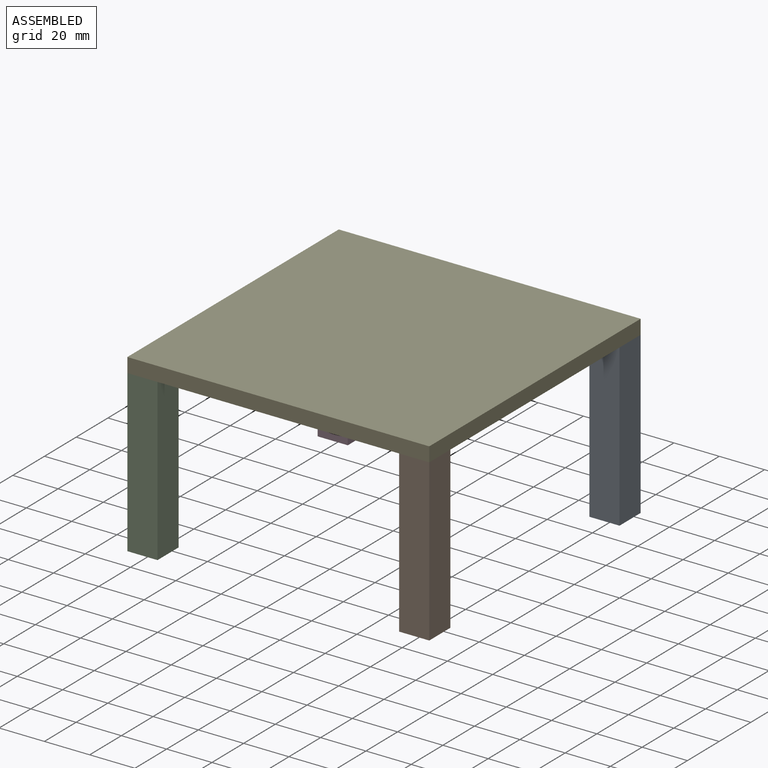
[diagram: assembled view]
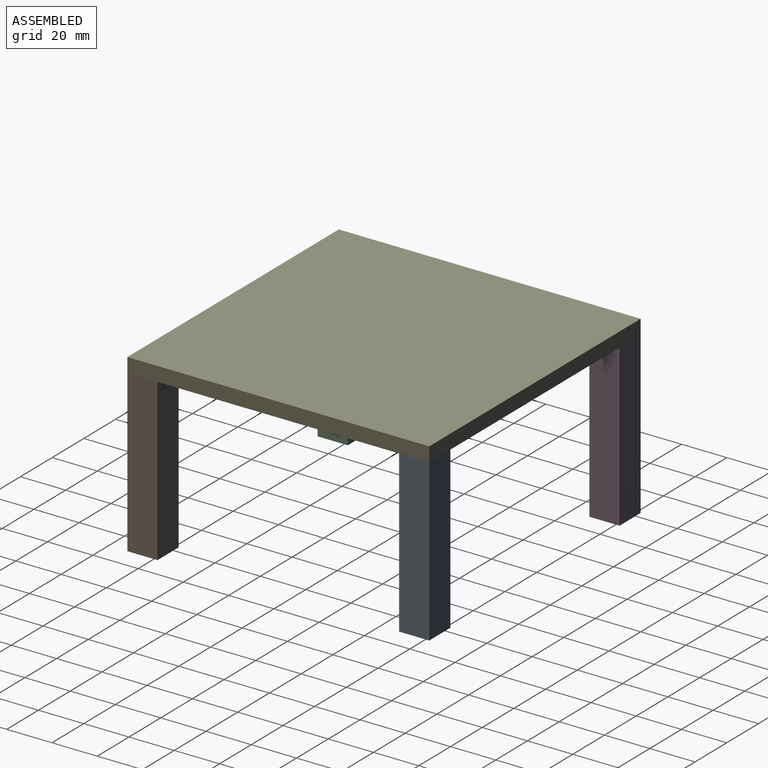
[diagram: assembled view, second angle]
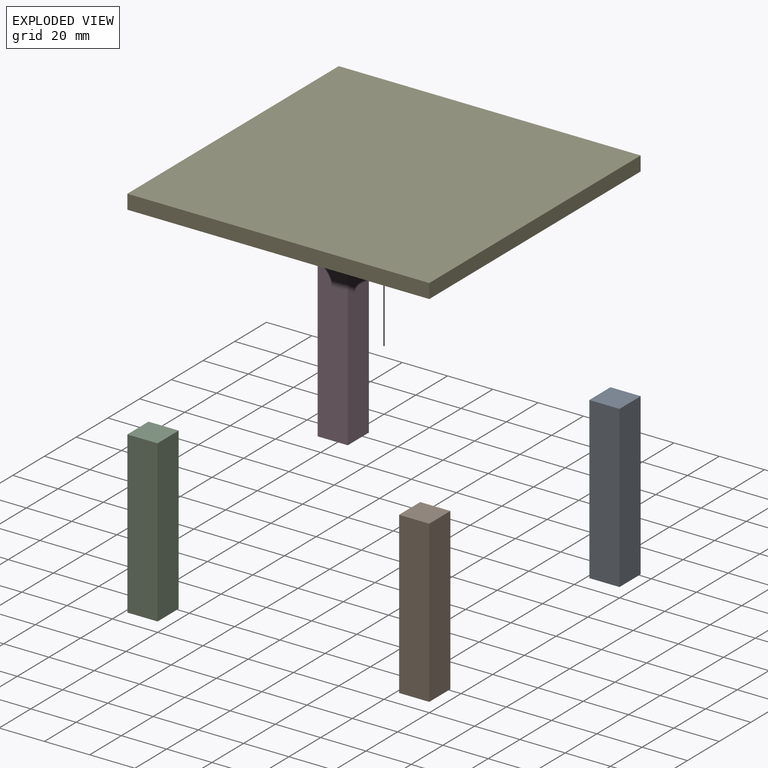
[diagram: exploded view]
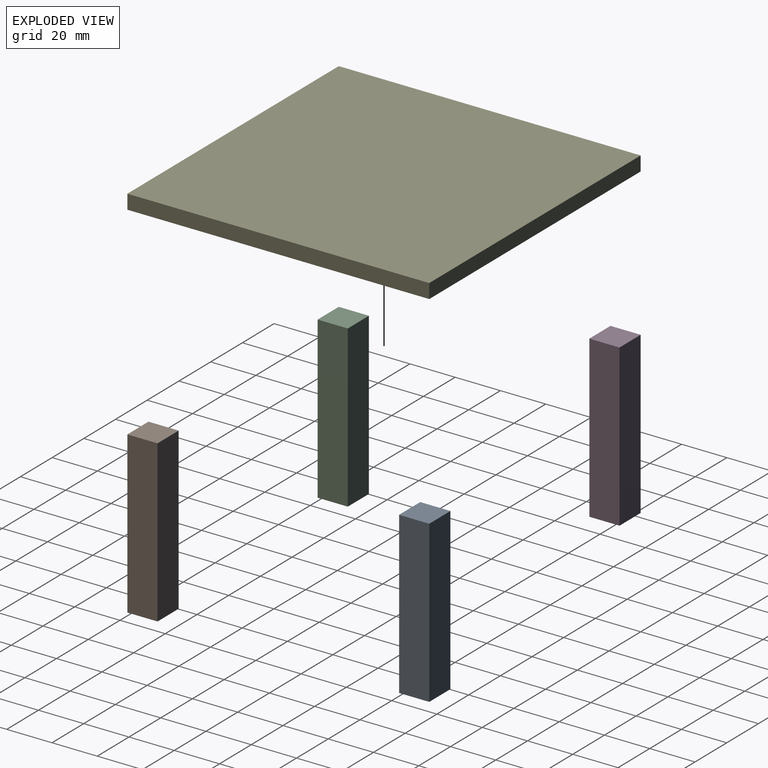
[diagram: exploded view, second angle]
ASSEMBLY  parts=5 mates=4
PART A: 6 faces, bbox 71.1x13.3x13.3 mm
  f0: plane 13.34x13.34mm, normal (-1,0,0), area 177.8mm2, adj f1,f3,f4,f5
  f1: plane 71.12x13.34mm, normal (0,0,-1), area 948.4mm2, adj f0,f2,f4,f5
  f2: plane 13.34x13.34mm, normal (1,0,0), area 177.8mm2, adj f1,f3,f4,f5
  f3: plane 71.12x13.34mm, normal (0,0,1), area 948.4mm2, adj f0,f2,f4,f5
  f4: plane 71.12x13.34mm, normal (0,-1,0), area 948.4mm2, adj f0,f1,f2,f3
  f5: plane 71.12x13.34mm, normal (0,1,0), area 948.4mm2, adj f0,f1,f2,f3
PART B: same geometry as A
PART C: same geometry as A
PART D: same geometry as A
PART E: 6 faces, bbox 133.4x6.4x133.4 mm
  f0: plane 133.35x6.39mm, normal (-1,0,0), area 852.4mm2, adj f1,f3,f4,f5
  f1: plane 133.35x6.39mm, normal (0,0,-1), area 852.4mm2, adj f0,f2,f4,f5
  f2: plane 133.35x6.39mm, normal (1,0,0), area 852.4mm2, adj f1,f3,f4,f5
  f3: plane 133.35x6.39mm, normal (0,0,1), area 852.4mm2, adj f0,f2,f4,f5
  f4: plane 133.35x133.35mm, normal (0,-1,0), area 17782.2mm2, adj f0,f1,f2,f3
  f5: plane 133.35x133.35mm, normal (0,1,0), area 17782.2mm2, adj f0,f1,f2,f3
PLACE A rot(axis=(0,-1,0),90deg) t=(158.45,195.54,-120.23)mm
PLACE B rot(axis=(0.58,0.58,-0.58),120deg) t=(158.45,75.53,-49.11)mm
PLACE C rot(axis=(0.71,0,0.71),180deg) t=(25.1,62.19,-120.23)mm
PLACE D rot(axis=(0.58,-0.58,0.58),120deg) t=(25.1,195.54,-120.23)mm
PLACE E rot(axis=(0,-0.71,0.71),180deg) t=(158.45,195.54,-49.11)mm
MATE fastened A.f2 <-> E.f5  axis (0,0,1) through (158.45,195.54,-49.11)mm
MATE fastened D.f2 <-> E.f5  axis (0,0,1) through (25.1,195.54,-49.11)mm
MATE fastened B.f0 <-> E.f5  axis (0,0,1) through (158.45,62.19,-49.11)mm
MATE fastened C.f2 <-> E.f5  axis (0,0,1) through (25.1,62.19,-49.11)mm
